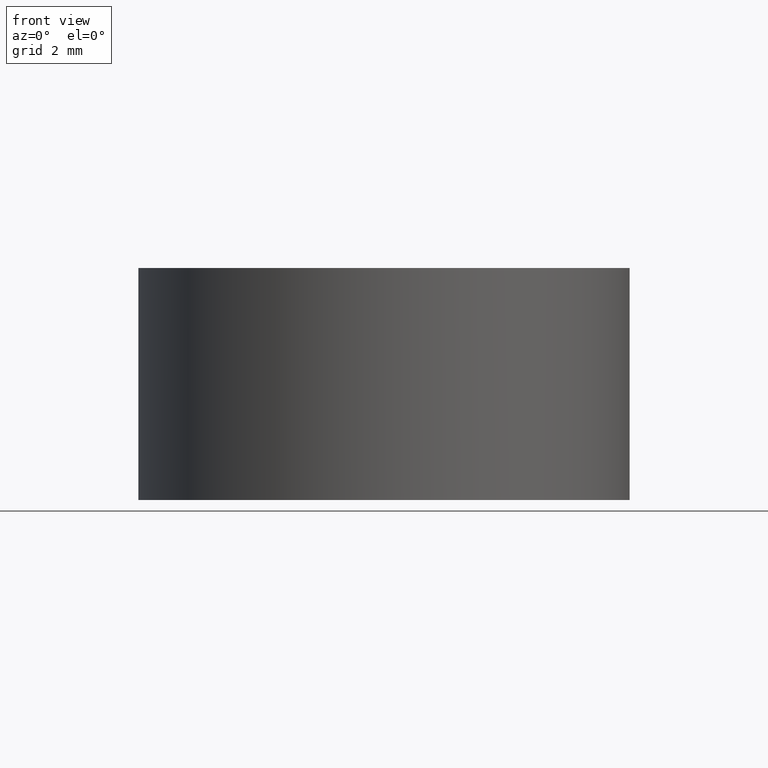
[diagram: clean part render]
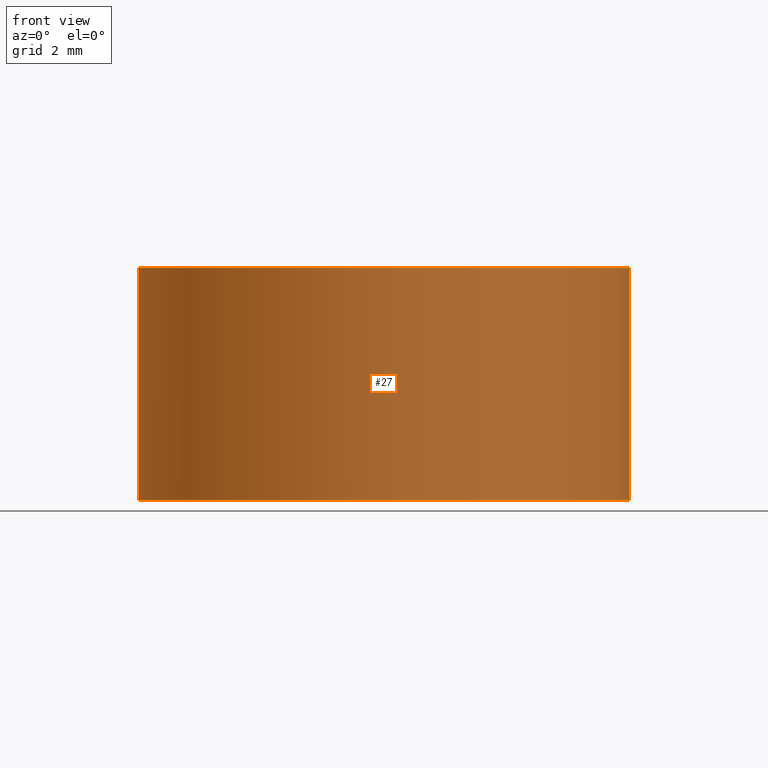
[diagram: same view with one face highlighted and labeled with its STEP entity id]
A machine part, front view. The second image highlights one B-rep face of the part: STEP entity #27.
In plain terms, the highlighted cylindrical surface (partial cylindrical patch) has radius 6.35 mm, axis along (-0, -0, -1).
Its self-contained STEP definition (entity closure, byte-faithful):
#1 = CIRCLE ( 'NONE', #15, 6.349999999999999645 ) ;
#7 = EDGE_CURVE ( 'NONE', #78, #55, #151, .T. ) ;
#11 = EDGE_LOOP ( 'NONE', ( #59, #108, #105, #178 ) ) ;
#12 = EDGE_CURVE ( 'NONE', #78, #147, #63, .T. ) ;
#14 = CARTESIAN_POINT ( 'NONE',  ( 0.000000000000000000, 0.000000000000000000, 0.000000000000000000 ) ) ;
#15 = AXIS2_PLACEMENT_3D ( 'NONE', #14, #138, #172 ) ;
#20 = VECTOR ( 'NONE', #68, 1000.000000000000000 ) ;
#25 = CARTESIAN_POINT ( 'NONE',  ( 6.349999999999999645, 7.776507174585692163E-16, 6.000000000000000000 ) ) ;
#27 = ADVANCED_FACE ( 'NONE', ( #168 ), #113, .T. ) ;
#30 = EDGE_CURVE ( 'NONE', #147, #183, #31, .T. ) ;
#31 = LINE ( 'NONE', #83, #48 ) ;
#34 = CARTESIAN_POINT ( 'NONE',  ( -6.349999999999999645, 0.000000000000000000, 0.000000000000000000 ) ) ;
#39 = DIRECTION ( 'NONE',  ( -0.000000000000000000, -0.000000000000000000, -1.000000000000000000 ) ) ;
#42 = DIRECTION ( 'NONE',  ( 1.000000000000000000, 0.000000000000000000, 0.000000000000000000 ) ) ;
#45 = AXIS2_PLACEMENT_3D ( 'NONE', #117, #39, #166 ) ;
#48 = VECTOR ( 'NONE', #101, 1000.000000000000000 ) ;
#55 = VERTEX_POINT ( 'NONE', #167 ) ;
#59 = ORIENTED_EDGE ( 'NONE', *, *, #7, .F. ) ;
#63 = CIRCLE ( 'NONE', #191, 6.350000000003989342 ) ;
#68 = DIRECTION ( 'NONE',  ( -0.000000000000000000, -0.000000000000000000, -1.000000000000000000 ) ) ;
#78 = VERTEX_POINT ( 'NONE', #133 ) ;
#83 = CARTESIAN_POINT ( 'NONE',  ( -6.349999999999999645, 0.000000000000000000, 6.000000000000000000 ) ) ;
#101 = DIRECTION ( 'NONE',  ( -0.000000000000000000, -0.000000000000000000, -1.000000000000000000 ) ) ;
#105 = ORIENTED_EDGE ( 'NONE', *, *, #30, .T. ) ;
#108 = ORIENTED_EDGE ( 'NONE', *, *, #12, .T. ) ;
#113 = CYLINDRICAL_SURFACE ( 'NONE', #45, 6.349999999999999645 ) ;
#117 = CARTESIAN_POINT ( 'NONE',  ( 0.000000000000000000, 0.000000000000000000, 6.000000000000000000 ) ) ;
#130 = DIRECTION ( 'NONE',  ( -0.000000000000000000, -0.000000000000000000, -1.000000000000000000 ) ) ;
#133 = CARTESIAN_POINT ( 'NONE',  ( 6.350000000004039080, 7.776507174590639307E-16, 6.000000000000005329 ) ) ;
#138 = DIRECTION ( 'NONE',  ( 0.000000000000000000, 0.000000000000000000, 1.000000000000000000 ) ) ;
#147 = VERTEX_POINT ( 'NONE', #181 ) ;
#151 = LINE ( 'NONE', #25, #20 ) ;
#165 = CARTESIAN_POINT ( 'NONE',  ( 5.030698080332740574E-14, 0.000000000000000000, 6.000000000000005329 ) ) ;
#166 = DIRECTION ( 'NONE',  ( -1.000000000000000000, 0.000000000000000000, 0.000000000000000000 ) ) ;
#167 = CARTESIAN_POINT ( 'NONE',  ( 6.349999999999999645, 7.776507174585692163E-16, 0.000000000000000000 ) ) ;
#168 = FACE_OUTER_BOUND ( 'NONE', #11, .T. ) ;
#172 = DIRECTION ( 'NONE',  ( 1.000000000000000000, 0.000000000000000000, 0.000000000000000000 ) ) ;
#178 = ORIENTED_EDGE ( 'NONE', *, *, #185, .T. ) ;
#181 = CARTESIAN_POINT ( 'NONE',  ( -6.350000000003939604, 0.000000000000000000, 6.000000000000005329 ) ) ;
#183 = VERTEX_POINT ( 'NONE', #34 ) ;
#185 = EDGE_CURVE ( 'NONE', #183, #55, #1, .T. ) ;
#191 = AXIS2_PLACEMENT_3D ( 'NONE', #165, #130, #42 ) ;